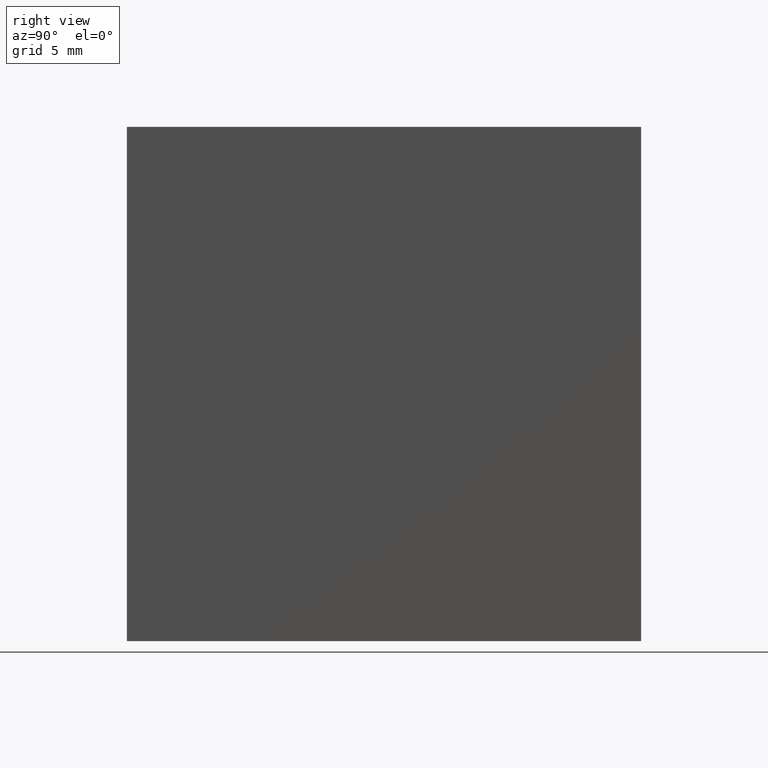
[diagram: clean part render]
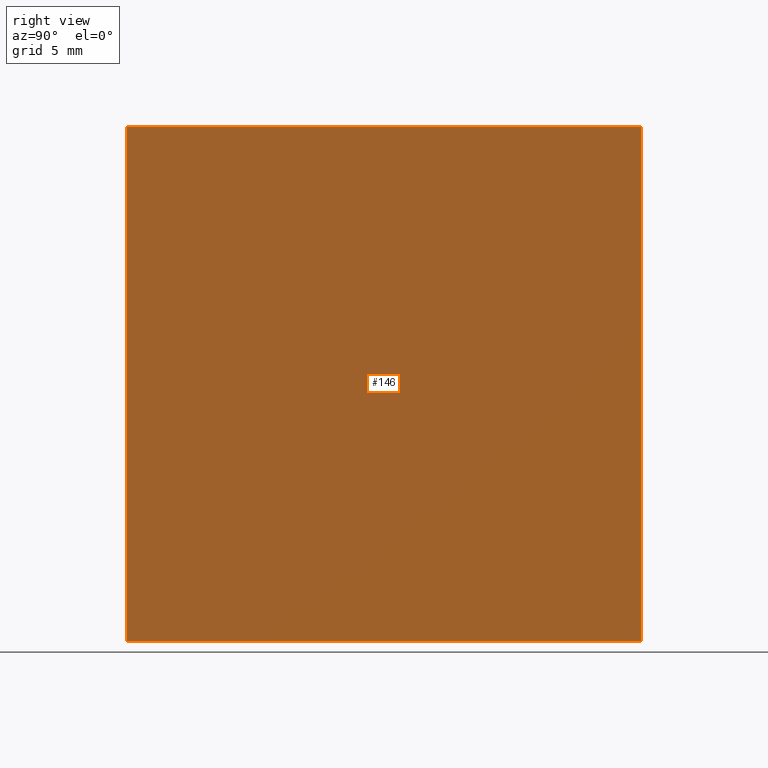
[diagram: same view with one face highlighted and labeled with its STEP entity id]
A machine part, right view. The second image highlights one B-rep face of the part: STEP entity #146.
In plain terms, the highlighted planar face has unit normal (-1, 0, 0).
Its self-contained STEP definition (entity closure, byte-faithful):
#8 = LINE ( 'NONE', #178, #81 ) ;
#12 = CARTESIAN_POINT ( 'NONE',  ( -509.3447956651486900, 20.00000000000000000, -10.00000000000000400 ) ) ;
#20 = PLANE ( 'NONE',  #195 ) ;
#24 = CARTESIAN_POINT ( 'NONE',  ( -509.3447956651486900, 20.00000000000000000, 10.00000000000000000 ) ) ;
#26 = FACE_OUTER_BOUND ( 'NONE', #147, .T. ) ;
#27 = DIRECTION ( 'NONE',  ( -0.0000000000000000000, -1.000000000000000000, -0.0000000000000000000 ) ) ;
#37 = VECTOR ( 'NONE', #196, 1000.000000000000000 ) ;
#44 = DIRECTION ( 'NONE',  ( -1.000000000000000000, 0.0000000000000000000, 0.0000000000000000000 ) ) ;
#46 = CARTESIAN_POINT ( 'NONE',  ( -509.3447956651486900, 20.00000000000000000, 10.00000000000000000 ) ) ;
#53 = ORIENTED_EDGE ( 'NONE', *, *, #109, .F. ) ;
#54 = VECTOR ( 'NONE', #88, 1000.000000000000000 ) ;
#55 = EDGE_CURVE ( 'NONE', #144, #180, #8, .T. ) ;
#75 = LINE ( 'NONE', #46, #54 ) ;
#79 = DIRECTION ( 'NONE',  ( -0.0000000000000000000, -0.0000000000000000000, -1.000000000000000000 ) ) ;
#81 = VECTOR ( 'NONE', #79, 1000.000000000000000 ) ;
#88 = DIRECTION ( 'NONE',  ( -0.0000000000000000000, -1.000000000000000000, -0.0000000000000000000 ) ) ;
#89 = CARTESIAN_POINT ( 'NONE',  ( -509.3447956651486900, 0.0000000000000000000, 10.00000000000000000 ) ) ;
#90 = CARTESIAN_POINT ( 'NONE',  ( -509.3447956651486900, 0.0000000000000000000, -10.00000000000000400 ) ) ;
#96 = ORIENTED_EDGE ( 'NONE', *, *, #118, .T. ) ;
#109 = EDGE_CURVE ( 'NONE', #127, #180, #142, .T. ) ;
#118 = EDGE_CURVE ( 'NONE', #189, #144, #75, .T. ) ;
#126 = CARTESIAN_POINT ( 'NONE',  ( -509.3447956651486900, 20.00000000000000000, -10.00000000000000400 ) ) ;
#127 = VERTEX_POINT ( 'NONE', #181 ) ;
#137 = VECTOR ( 'NONE', #27, 1000.000000000000000 ) ;
#139 = LINE ( 'NONE', #166, #37 ) ;
#140 = DIRECTION ( 'NONE',  ( 0.0000000000000000000, 0.0000000000000000000, 1.000000000000000000 ) ) ;
#142 = LINE ( 'NONE', #126, #137 ) ;
#143 = ORIENTED_EDGE ( 'NONE', *, *, #55, .T. ) ;
#144 = VERTEX_POINT ( 'NONE', #89 ) ;
#146 = ADVANCED_FACE ( 'NONE', ( #26 ), #20, .F. ) ;
#147 = EDGE_LOOP ( 'NONE', ( #143, #53, #190, #96 ) ) ;
#162 = EDGE_CURVE ( 'NONE', #189, #127, #139, .T. ) ;
#166 = CARTESIAN_POINT ( 'NONE',  ( -509.3447956651486900, 20.00000000000000000, -10.00000000000000400 ) ) ;
#178 = CARTESIAN_POINT ( 'NONE',  ( -509.3447956651486900, 0.0000000000000000000, -10.00000000000000400 ) ) ;
#180 = VERTEX_POINT ( 'NONE', #90 ) ;
#181 = CARTESIAN_POINT ( 'NONE',  ( -509.3447956651486900, 20.00000000000000000, -10.00000000000000400 ) ) ;
#189 = VERTEX_POINT ( 'NONE', #24 ) ;
#190 = ORIENTED_EDGE ( 'NONE', *, *, #162, .F. ) ;
#195 = AXIS2_PLACEMENT_3D ( 'NONE', #12, #44, #140 ) ;
#196 = DIRECTION ( 'NONE',  ( -0.0000000000000000000, -0.0000000000000000000, -1.000000000000000000 ) ) ;